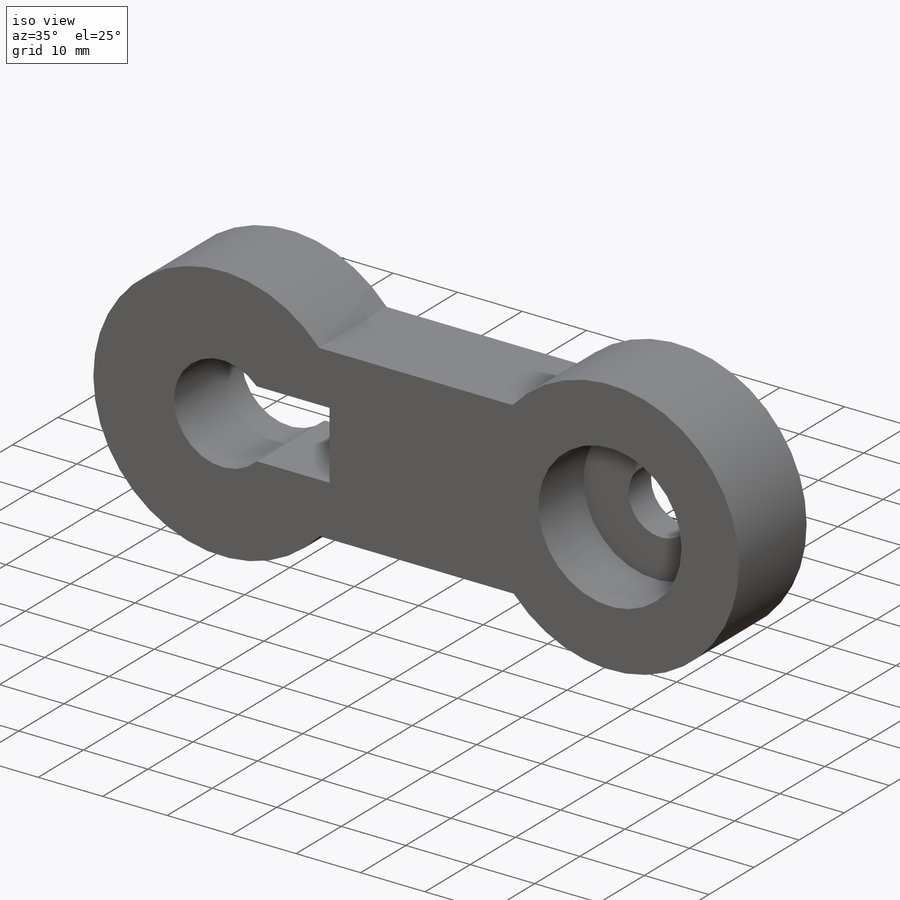
[diagram: iso view]
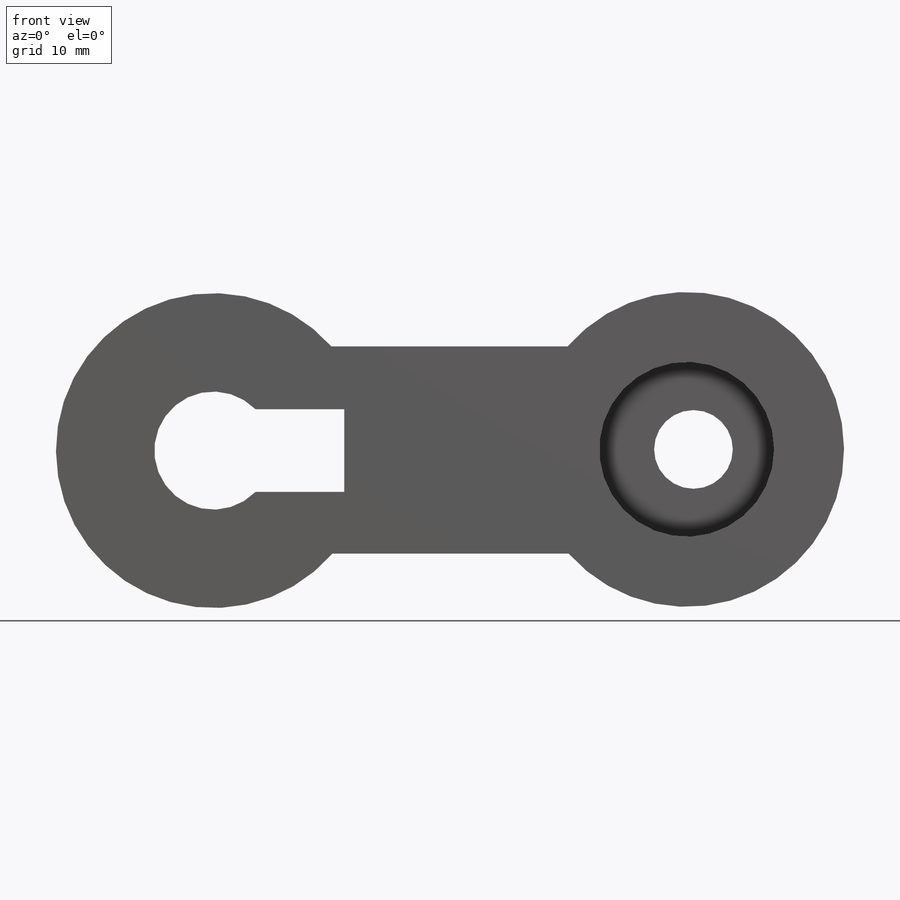
[diagram: front view]
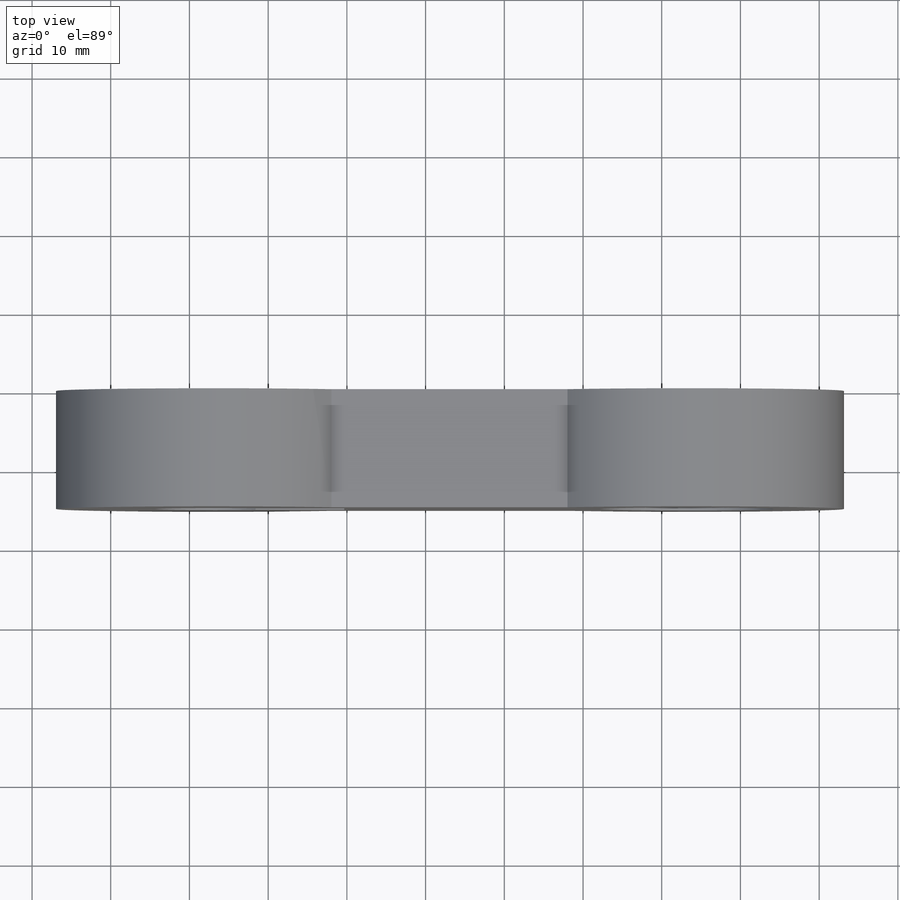
[diagram: top view]
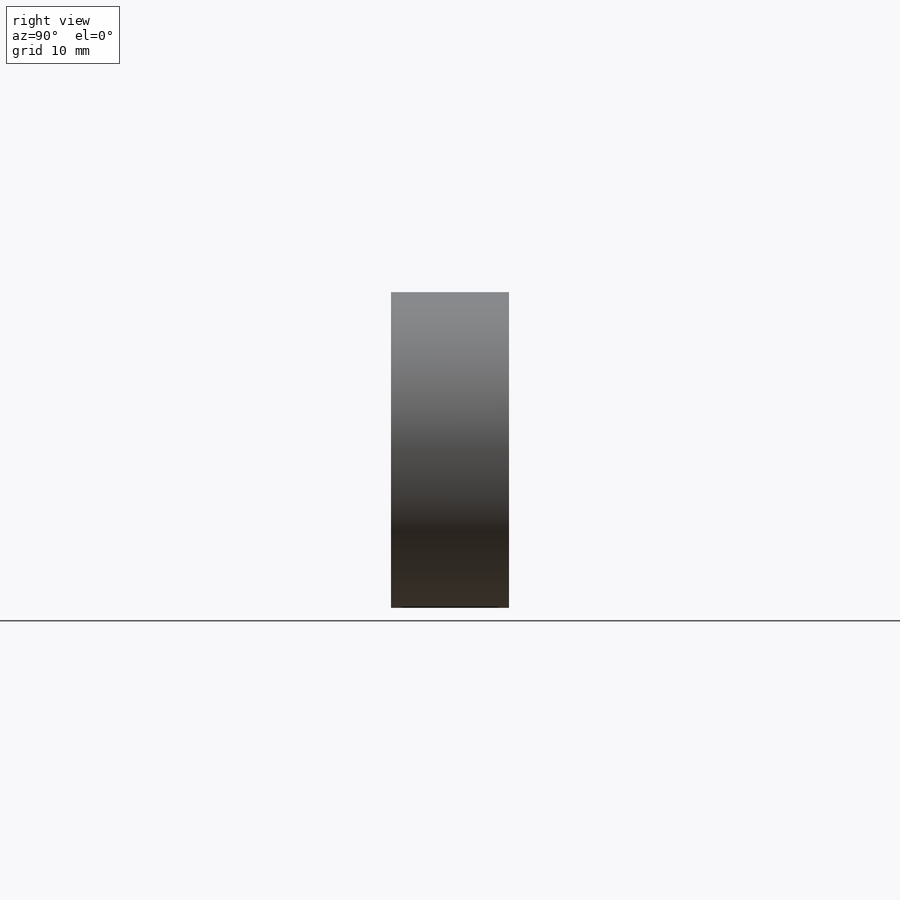
[diagram: right view]
SOLIDWORKS PART (.sldprt)
format: sldprt  version: not decoded by parser v0  size: 214,016 bytes
history: native  units: mm
features: sketch x5, cut_extrude x3, material x1, extrude x1 (+13 scaffold rows collapsed)
feature tree (23):
  scaffold x13  (default folders/planes/origin — collapsed)
  material  "Plain Carbon Steel"
  sketch  "Sketch4"  dims[c1.D3=40.0mm c1.D4=20.0mm c1.D1=70.0mm c1.D2=25.0mm c1.D5=0.0mm c1.D6=0.0mm c2.D1=30.0mm c2.D2=30.0mm]
  extrude  "Boss-Extrude3"  Depth=15mm
  sketch  "Sketch5"  dims[c1.D3=23.0mm c1.D4=22.2mm c1.D5=23.0mm c1.D1=0.0mm c1.D2=0.0mm c2.D5=~1.161472mm]
  cut_extrude  "Cut-Extrude2"  Depth=10mm
  sketch  "Sketch8"  dims[c1.D1=~10.690014mm c1.D2=10.0mm c2.D1=0.0mm]
  cut_extrude  "Cut-Extrude5"  Depth=10mm
  sketch  "Sketch9"
  sketch  "Sketch10"  dims[c1.D1=~16.784925mm c1.D2=15.0mm c1.D3=12.0mm c2.D1=0.0mm c2.D3=7.0mm c2.D4=7.0mm c2.D5=12.0mm c2.D6=10.5mm c2.D7=10.5mm c3.D7=180.0deg]
  cut_extrude  "Cut-Extrude6"  [1 undecoded]
decode coverage: 7 of 9 modeling features carry decoded parameters
note: ~ marks probable driven/reference dimensions
note: 1 parameter value undecoded
note: suppression state not decoded; provenance and decode notes live in map.json
